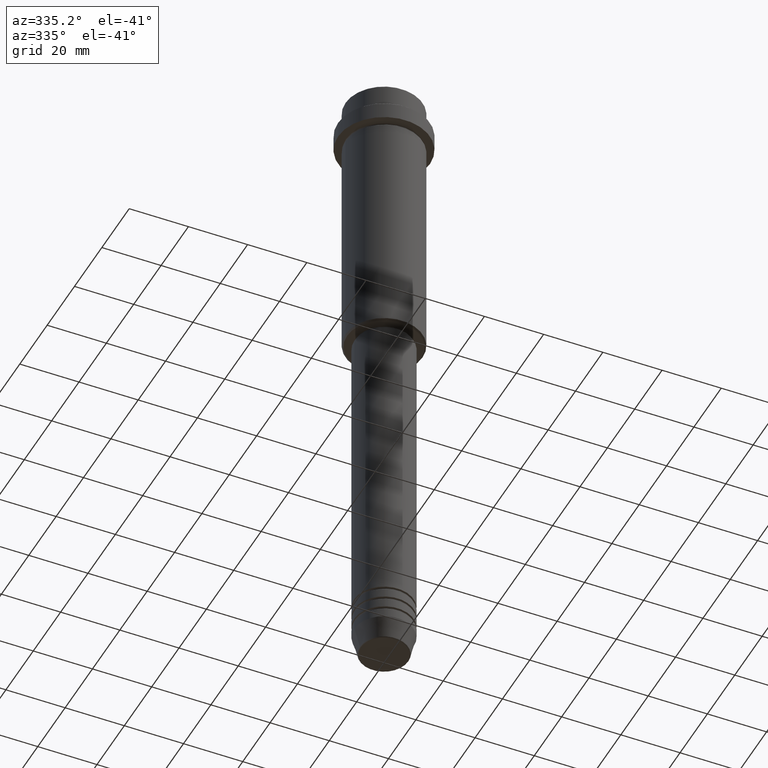
[diagram: clean part render]
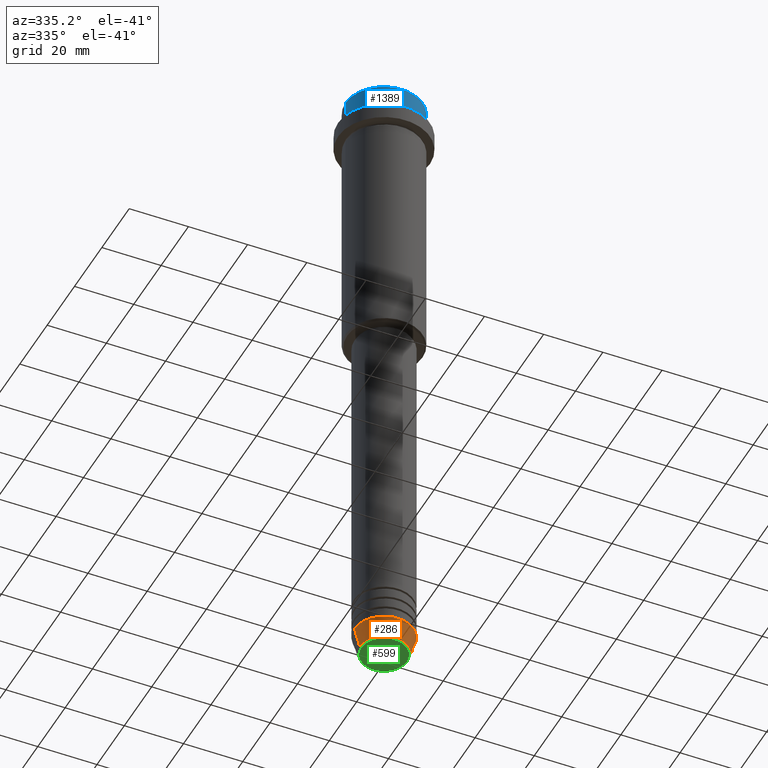
[diagram: same view with three faces highlighted in distinct colors, each labeled with its STEP entity id]
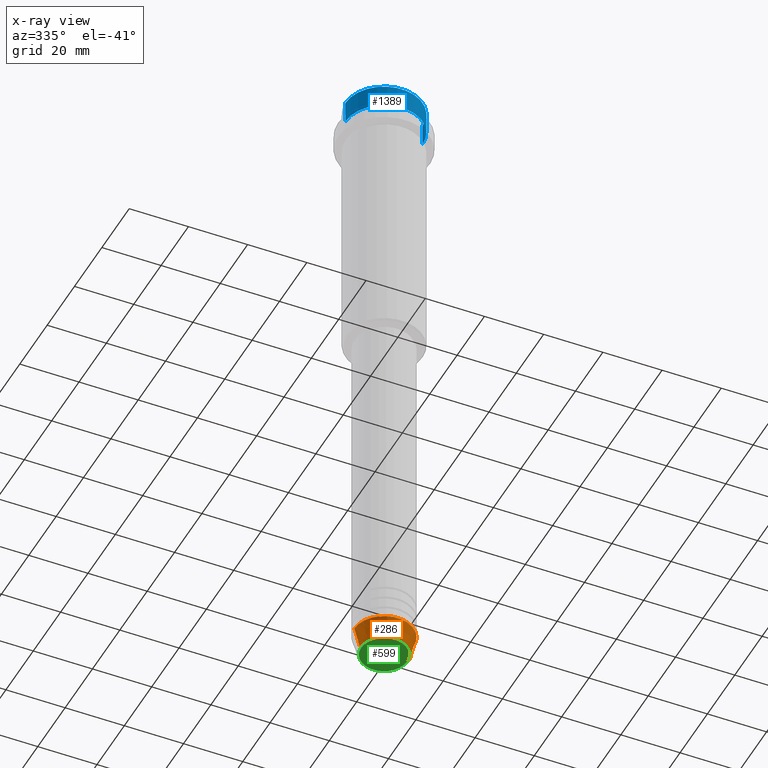
[diagram: x-ray of the same camera — body ghosted, the three highlighted faces saturated]
A machine part, auxiliary view with three faces highlighted in distinct colors.
The next image is the same camera in x-ray (body ghosted, the three faces saturated) — at least one of them is partly hidden behind the body in this view.
Their STEP definitions:

[orange] entity #286 — the highlighted conical surface has half-angle 15 deg.
#2 = CARTESIAN_POINT ( 'NONE',  ( 0.000000000000000000, 0.000000000000000000, -219.6294095225512137 ) ) ;
#12 = CARTESIAN_POINT ( 'NONE',  ( -8.223655072137189492, 1.115877042642911856E-15, -219.6294095225512137 ) ) ;
#81 = CARTESIAN_POINT ( 'NONE',  ( 0.000000000000000000, 0.000000000000000000, -212.9999999999999716 ) ) ;
#220 = AXIS2_PLACEMENT_3D ( 'NONE', #81, #703, #1275 ) ;
#282 = FACE_OUTER_BOUND ( 'NONE', #1339, .T. ) ;
#286 = ADVANCED_FACE ( 'NONE', ( #282 ), #584, .T. ) ;
#326 = EDGE_CURVE ( 'NONE', #778, #1079, #1264, .T. ) ;
#331 = VECTOR ( 'NONE', #1106, 1000.000000000000114 ) ;
#337 = DIRECTION ( 'NONE',  ( 1.000000000000000000, 0.000000000000000000, 0.000000000000000000 ) ) ;
#426 = EDGE_CURVE ( 'NONE', #1352, #1359, #1117, .T. ) ;
#440 = AXIS2_PLACEMENT_3D ( 'NONE', #2, #1319, #337 ) ;
#467 = ORIENTED_EDGE ( 'NONE', *, *, #622, .T. ) ;
#478 = CARTESIAN_POINT ( 'NONE',  ( 10.00000000000000000, 0.000000000000000000, -212.9999999999999716 ) ) ;
#536 = LINE ( 'NONE', #761, #978 ) ;
#584 = CONICAL_SURFACE ( 'NONE', #756, 10.00000000000000000, 0.2617993877991502405 ) ;
#622 = EDGE_CURVE ( 'NONE', #1079, #1359, #536, .T. ) ;
#635 = ORIENTED_EDGE ( 'NONE', *, *, #326, .T. ) ;
#670 = CARTESIAN_POINT ( 'NONE',  ( -10.00000000000000000, 1.224646799147353256E-15, -212.9999999999999716 ) ) ;
#694 = CARTESIAN_POINT ( 'NONE',  ( 0.000000000000000000, 0.000000000000000000, -212.9999999999999716 ) ) ;
#703 = DIRECTION ( 'NONE',  ( -0.000000000000000000, -0.000000000000000000, 1.000000000000000000 ) ) ;
#756 = AXIS2_PLACEMENT_3D ( 'NONE', #694, #1145, #1344 ) ;
#761 = CARTESIAN_POINT ( 'NONE',  ( 10.00000000000000000, 0.000000000000000000, -212.9999999999999716 ) ) ;
#778 = VERTEX_POINT ( 'NONE', #12 ) ;
#978 = VECTOR ( 'NONE', #1411, 1000.000000000000114 ) ;
#1079 = VERTEX_POINT ( 'NONE', #1309 ) ;
#1081 = ORIENTED_EDGE ( 'NONE', *, *, #426, .F. ) ;
#1089 = ORIENTED_EDGE ( 'NONE', *, *, #1137, .F. ) ;
#1106 = DIRECTION ( 'NONE',  ( -0.2588190451025214611, 3.169619151431774186E-17, 0.9659258262890679791 ) ) ;
#1117 = CIRCLE ( 'NONE', #220, 10.00000000000000000 ) ;
#1137 = EDGE_CURVE ( 'NONE', #778, #1352, #1221, .T. ) ;
#1145 = DIRECTION ( 'NONE',  ( -0.000000000000000000, -0.000000000000000000, 1.000000000000000000 ) ) ;
#1221 = LINE ( 'NONE', #670, #331 ) ;
#1264 = CIRCLE ( 'NONE', #440, 8.223655072137189492 ) ;
#1275 = DIRECTION ( 'NONE',  ( 1.000000000000000000, 0.000000000000000000, 0.000000000000000000 ) ) ;
#1309 = CARTESIAN_POINT ( 'NONE',  ( 8.223655072137189492, 0.000000000000000000, -219.6294095225512137 ) ) ;
#1319 = DIRECTION ( 'NONE',  ( -0.000000000000000000, -0.000000000000000000, 1.000000000000000000 ) ) ;
#1339 = EDGE_LOOP ( 'NONE', ( #1089, #635, #467, #1081 ) ) ;
#1344 = DIRECTION ( 'NONE',  ( 1.000000000000000000, 0.000000000000000000, 0.000000000000000000 ) ) ;
#1352 = VERTEX_POINT ( 'NONE', #1376 ) ;
#1359 = VERTEX_POINT ( 'NONE', #478 ) ;
#1376 = CARTESIAN_POINT ( 'NONE',  ( -10.00000000000000000, 1.224646799147353256E-15, -212.9999999999999716 ) ) ;
#1411 = DIRECTION ( 'NONE',  ( 0.2588190451025214611, 0.000000000000000000, 0.9659258262890679791 ) ) ;

[blue] entity #1389 — the highlighted cylindrical surface (partial cylindrical patch) has radius 13 mm, axis along (-0, -0, 1).
#9 = CARTESIAN_POINT ( 'NONE',  ( 12.99999999999999822, 0.000000000000000000, -7.999999999999998224 ) ) ;
#15 = CARTESIAN_POINT ( 'NONE',  ( 0.000000000000000000, 0.000000000000000000, -0.4999999999999761302 ) ) ;
#45 = CARTESIAN_POINT ( 'NONE',  ( 0.000000000000000000, 0.000000000000000000, 0.000000000000000000 ) ) ;
#59 = VERTEX_POINT ( 'NONE', #9 ) ;
#75 = VECTOR ( 'NONE', #315, 1000.000000000000000 ) ;
#84 = CARTESIAN_POINT ( 'NONE',  ( -12.99999999999999822, 1.592040838891558898E-15, 0.000000000000000000 ) ) ;
#102 = CARTESIAN_POINT ( 'NONE',  ( 12.99999999999999822, 0.000000000000000000, -0.4999999999999761302 ) ) ;
#107 = DIRECTION ( 'NONE',  ( -0.000000000000000000, -0.000000000000000000, 1.000000000000000000 ) ) ;
#144 = EDGE_CURVE ( 'NONE', #612, #704, #687, .T. ) ;
#153 = DIRECTION ( 'NONE',  ( 0.000000000000000000, 0.000000000000000000, -1.000000000000000000 ) ) ;
#166 = VECTOR ( 'NONE', #107, 1000.000000000000000 ) ;
#167 = DIRECTION ( 'NONE',  ( 1.000000000000000000, 0.000000000000000000, 0.000000000000000000 ) ) ;
#268 = AXIS2_PLACEMENT_3D ( 'NONE', #15, #153, #1025 ) ;
#296 = EDGE_CURVE ( 'NONE', #1051, #704, #1072, .T. ) ;
#315 = DIRECTION ( 'NONE',  ( -0.000000000000000000, -0.000000000000000000, 1.000000000000000000 ) ) ;
#333 = AXIS2_PLACEMENT_3D ( 'NONE', #1122, #453, #167 ) ;
#383 = EDGE_CURVE ( 'NONE', #1051, #59, #623, .T. ) ;
#453 = DIRECTION ( 'NONE',  ( -0.000000000000000000, -0.000000000000000000, 1.000000000000000000 ) ) ;
#487 = DIRECTION ( 'NONE',  ( -0.000000000000000000, -0.000000000000000000, 1.000000000000000000 ) ) ;
#521 = CARTESIAN_POINT ( 'NONE',  ( 12.99999999999999822, 0.000000000000000000, 0.000000000000000000 ) ) ;
#562 = AXIS2_PLACEMENT_3D ( 'NONE', #45, #487, #1276 ) ;
#612 = VERTEX_POINT ( 'NONE', #102 ) ;
#623 = CIRCLE ( 'NONE', #333, 12.99999999999999822 ) ;
#687 = CIRCLE ( 'NONE', #268, 12.99999999999999822 ) ;
#704 = VERTEX_POINT ( 'NONE', #895 ) ;
#843 = CARTESIAN_POINT ( 'NONE',  ( -12.99999999999999822, 1.592040838891558898E-15, -7.999999999999998224 ) ) ;
#895 = CARTESIAN_POINT ( 'NONE',  ( -12.99999999999999822, 1.592040838891558898E-15, -0.4999999999999761302 ) ) ;
#917 = CYLINDRICAL_SURFACE ( 'NONE', #562, 12.99999999999999822 ) ;
#960 = EDGE_LOOP ( 'NONE', ( #1011, #1227, #1107, #1260 ) ) ;
#963 = LINE ( 'NONE', #521, #166 ) ;
#1011 = ORIENTED_EDGE ( 'NONE', *, *, #296, .F. ) ;
#1025 = DIRECTION ( 'NONE',  ( 1.000000000000000000, 0.000000000000000000, 0.000000000000000000 ) ) ;
#1027 = FACE_OUTER_BOUND ( 'NONE', #960, .T. ) ;
#1051 = VERTEX_POINT ( 'NONE', #843 ) ;
#1072 = LINE ( 'NONE', #84, #75 ) ;
#1078 = EDGE_CURVE ( 'NONE', #59, #612, #963, .T. ) ;
#1107 = ORIENTED_EDGE ( 'NONE', *, *, #1078, .T. ) ;
#1122 = CARTESIAN_POINT ( 'NONE',  ( 0.000000000000000000, 0.000000000000000000, -7.999999999999998224 ) ) ;
#1227 = ORIENTED_EDGE ( 'NONE', *, *, #383, .T. ) ;
#1260 = ORIENTED_EDGE ( 'NONE', *, *, #144, .T. ) ;
#1276 = DIRECTION ( 'NONE',  ( 1.000000000000000000, 0.000000000000000000, 0.000000000000000000 ) ) ;
#1389 = ADVANCED_FACE ( 'NONE', ( #1027 ), #917, .T. ) ;

[green] entity #599 — the highlighted planar face has unit normal (0, -0, 1).
#82 = VERTEX_POINT ( 'NONE', #342 ) ;
#103 = VERTEX_POINT ( 'NONE', #740 ) ;
#118 = CIRCLE ( 'NONE', #309, 7.740692158992656502 ) ;
#131 = EDGE_LOOP ( 'NONE', ( #634, #1054 ) ) ;
#214 = CARTESIAN_POINT ( 'NONE',  ( 0.000000000000000000, 0.000000000000000000, -219.9999999999999716 ) ) ;
#216 = AXIS2_PLACEMENT_3D ( 'NONE', #851, #534, #967 ) ;
#224 = EDGE_CURVE ( 'NONE', #103, #82, #537, .T. ) ;
#272 = EDGE_CURVE ( 'NONE', #82, #103, #118, .T. ) ;
#309 = AXIS2_PLACEMENT_3D ( 'NONE', #906, #1245, #1261 ) ;
#319 = DIRECTION ( 'NONE',  ( 1.000000000000000000, 0.000000000000000000, 0.000000000000000000 ) ) ;
#342 = CARTESIAN_POINT ( 'NONE',  ( 7.740692158992656502, 0.000000000000000000, -219.9999999999999716 ) ) ;
#534 = DIRECTION ( 'NONE',  ( 0.000000000000000000, 0.000000000000000000, -1.000000000000000000 ) ) ;
#537 = CIRCLE ( 'NONE', #216, 7.740692158992656502 ) ;
#578 = AXIS2_PLACEMENT_3D ( 'NONE', #214, #1062, #319 ) ;
#599 = ADVANCED_FACE ( 'NONE', ( #979 ), #1069, .F. ) ;
#634 = ORIENTED_EDGE ( 'NONE', *, *, #272, .T. ) ;
#740 = CARTESIAN_POINT ( 'NONE',  ( -7.740692158992656502, 9.775343368540041107E-16, -219.9999999999999716 ) ) ;
#851 = CARTESIAN_POINT ( 'NONE',  ( 0.000000000000000000, 0.000000000000000000, -219.9999999999999716 ) ) ;
#906 = CARTESIAN_POINT ( 'NONE',  ( 0.000000000000000000, 0.000000000000000000, -219.9999999999999716 ) ) ;
#967 = DIRECTION ( 'NONE',  ( 1.000000000000000000, 0.000000000000000000, 0.000000000000000000 ) ) ;
#979 = FACE_OUTER_BOUND ( 'NONE', #131, .T. ) ;
#1054 = ORIENTED_EDGE ( 'NONE', *, *, #224, .T. ) ;
#1062 = DIRECTION ( 'NONE',  ( 0.000000000000000000, -0.000000000000000000, 1.000000000000000000 ) ) ;
#1069 = PLANE ( 'NONE',  #578 ) ;
#1245 = DIRECTION ( 'NONE',  ( 0.000000000000000000, 0.000000000000000000, -1.000000000000000000 ) ) ;
#1261 = DIRECTION ( 'NONE',  ( 1.000000000000000000, 0.000000000000000000, 0.000000000000000000 ) ) ;